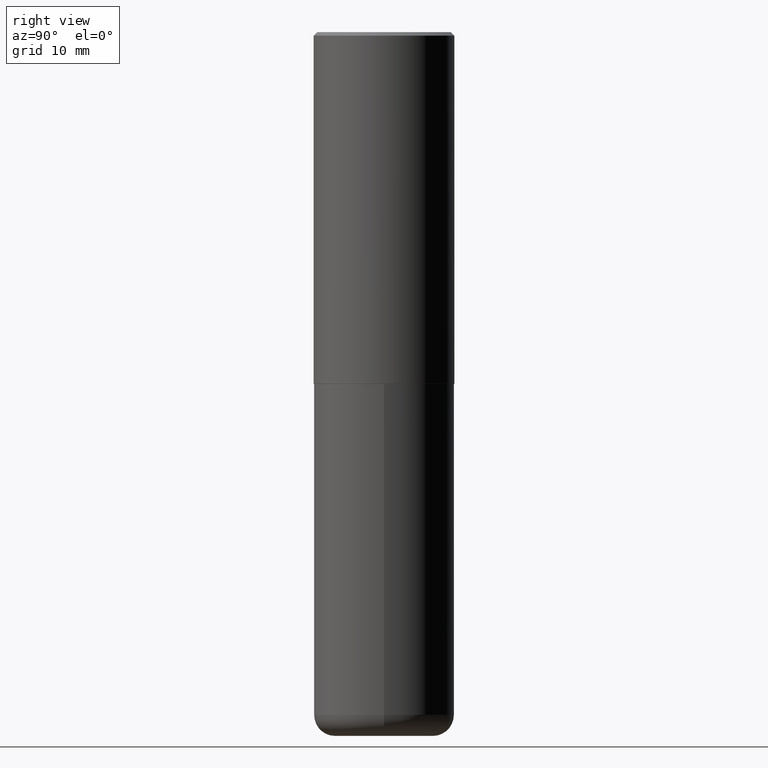
[diagram: clean part render]
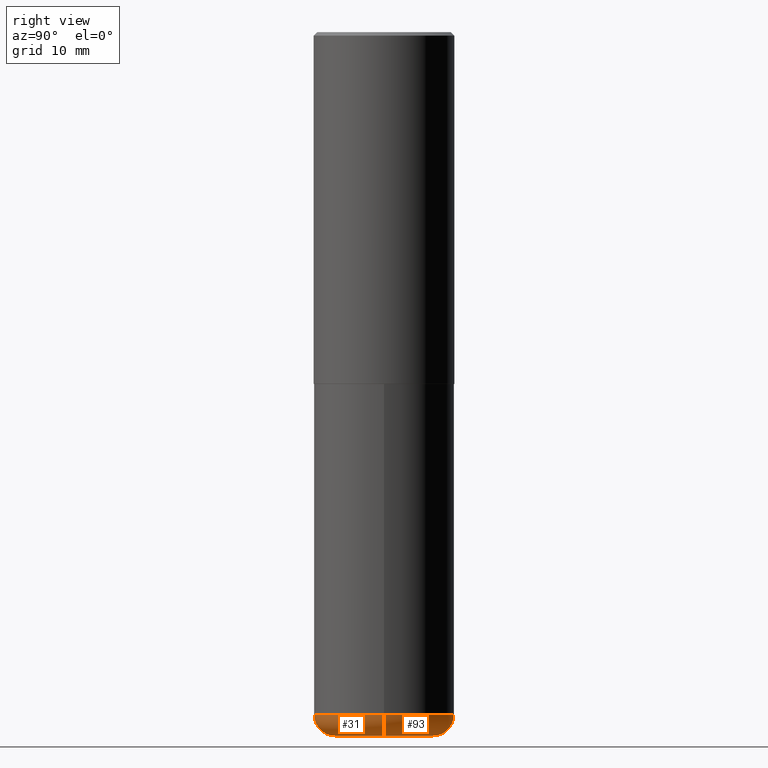
[diagram: same view with one multi-face feature highlighted, each face labeled with its STEP entity id]
A machine part, right view. The highlighted faces form ONE feature: a constant-radius fillet chain: 2 tangent blend faces with common blend radius 2.9997 mm. The faces share edges in the B-rep.
Their STEP definitions:
[1] entity #31 (Torus):
#5 = EDGE_CURVE ( 'NONE', #361, #190, #125, .T. ) ;
#20 = DIRECTION ( 'NONE',  ( 1.000000000000000000, -6.982962677686266711E-15, 4.883557194083112340E-29 ) ) ;
#29 = AXIS2_PLACEMENT_3D ( 'NONE', #271, #78, #305 ) ;
#31 = ADVANCED_FACE ( 'NONE', ( #86 ), #54, .T. ) ;
#52 = VERTEX_POINT ( 'NONE', #342 ) ;
#54 = TOROIDAL_SURFACE ( 'NONE', #121, 0.2756000000000000116, 0.1181000000000000522 ) ;
#60 = EDGE_CURVE ( 'NONE', #190, #219, #340, .T. ) ;
#78 = DIRECTION ( 'NONE',  ( -2.445468806185136597E-29, 3.491481338843145583E-15, 1.000000000000000000 ) ) ;
#79 = DIRECTION ( 'NONE',  ( 1.000000000000000000, -6.982962677686269077E-15, 0.000000000000000000 ) ) ;
#86 = FACE_OUTER_BOUND ( 'NONE', #110, .T. ) ;
#110 = EDGE_LOOP ( 'NONE', ( #357, #127, #333, #189 ) ) ;
#113 = CARTESIAN_POINT ( 'NONE',  ( -0.2756000000000000116, -1.137536230515325427E-14, -3.818900000000000183 ) ) ;
#121 = AXIS2_PLACEMENT_3D ( 'NONE', #275, #413, #20 ) ;
#125 = CIRCLE ( 'NONE', #173, 0.1181000000000000660 ) ;
#126 = CARTESIAN_POINT ( 'NONE',  ( -0.2756000000000000116, -1.116195879274560421E-14, -3.937000000000000277 ) ) ;
#127 = ORIENTED_EDGE ( 'NONE', *, *, #278, .T. ) ;
#134 = DIRECTION ( 'NONE',  ( -1.000000000000000000, 7.105427357601000281E-15, 0.000000000000000000 ) ) ;
#168 = CIRCLE ( 'NONE', #381, 0.1181000000000000660 ) ;
#173 = AXIS2_PLACEMENT_3D ( 'NONE', #113, #387, #134 ) ;
#189 = ORIENTED_EDGE ( 'NONE', *, *, #60, .F. ) ;
#190 = VERTEX_POINT ( 'NONE', #245 ) ;
#203 = EDGE_CURVE ( 'NONE', #52, #219, #168, .T. ) ;
#207 = CARTESIAN_POINT ( 'NONE',  ( 9.339000823940418668E-29, -1.333361808490808928E-14, -3.818900000000000183 ) ) ;
#219 = VERTEX_POINT ( 'NONE', #415 ) ;
#245 = CARTESIAN_POINT ( 'NONE',  ( -0.3937000000000001054, -1.053621133422057529E-14, -3.818900000000000183 ) ) ;
#271 = CARTESIAN_POINT ( 'NONE',  ( 9.627810689950883669E-29, -1.374596203102546341E-14, -3.937000000000000277 ) ) ;
#274 = AXIS2_PLACEMENT_3D ( 'NONE', #207, #302, #328 ) ;
#275 = CARTESIAN_POINT ( 'NONE',  ( 9.339000823940418668E-29, -1.333361808490808928E-14, -3.818900000000000183 ) ) ;
#278 = EDGE_CURVE ( 'NONE', #361, #52, #394, .T. ) ;
#302 = DIRECTION ( 'NONE',  ( -2.445468806185136597E-29, 3.491481338843145583E-15, 1.000000000000000000 ) ) ;
#305 = DIRECTION ( 'NONE',  ( 1.000000000000000000, -6.982962677686265922E-15, 0.000000000000000000 ) ) ;
#328 = DIRECTION ( 'NONE',  ( 1.000000000000000000, -6.982962677686266711E-15, 0.000000000000000000 ) ) ;
#333 = ORIENTED_EDGE ( 'NONE', *, *, #203, .T. ) ;
#340 = CIRCLE ( 'NONE', #274, 0.3937000000000001054 ) ;
#342 = CARTESIAN_POINT ( 'NONE',  ( 0.2756000000000000116, -1.567046654499579837E-14, -3.937000000000000277 ) ) ;
#357 = ORIENTED_EDGE ( 'NONE', *, *, #5, .F. ) ;
#361 = VERTEX_POINT ( 'NONE', #126 ) ;
#370 = CARTESIAN_POINT ( 'NONE',  ( 0.2756000000000000116, -1.525812259887842581E-14, -3.818900000000000183 ) ) ;
#381 = AXIS2_PLACEMENT_3D ( 'NONE', #370, #408, #79 ) ;
#387 = DIRECTION ( 'NONE',  ( 7.105427357601001859E-15, 1.000000000000000000, -3.491481338843145583E-15 ) ) ;
#394 = CIRCLE ( 'NONE', #29, 0.2756000000000000116 ) ;
#408 = DIRECTION ( 'NONE',  ( -6.982962677686266711E-15, -1.000000000000000000, 3.491481338843145583E-15 ) ) ;
#413 = DIRECTION ( 'NONE',  ( -2.445468806185136597E-29, 3.491481338843145583E-15, 1.000000000000000000 ) ) ;
#415 = CARTESIAN_POINT ( 'NONE',  ( 0.3937000000000001054, -1.608281049111317408E-14, -3.818900000000000183 ) ) ;
[2] entity #93 (Torus):
#5 = EDGE_CURVE ( 'NONE', #361, #190, #125, .T. ) ;
#23 = AXIS2_PLACEMENT_3D ( 'NONE', #161, #241, #298 ) ;
#37 = EDGE_CURVE ( 'NONE', #52, #361, #222, .T. ) ;
#38 = EDGE_LOOP ( 'NONE', ( #107, #170, #186, #416 ) ) ;
#52 = VERTEX_POINT ( 'NONE', #342 ) ;
#79 = DIRECTION ( 'NONE',  ( 1.000000000000000000, -6.982962677686269077E-15, 0.000000000000000000 ) ) ;
#93 = ADVANCED_FACE ( 'NONE', ( #373 ), #151, .T. ) ;
#100 = EDGE_CURVE ( 'NONE', #219, #190, #180, .T. ) ;
#104 = DIRECTION ( 'NONE',  ( -2.445468806185136597E-29, 3.491481338843145583E-15, 1.000000000000000000 ) ) ;
#107 = ORIENTED_EDGE ( 'NONE', *, *, #37, .T. ) ;
#113 = CARTESIAN_POINT ( 'NONE',  ( -0.2756000000000000116, -1.137536230515325427E-14, -3.818900000000000183 ) ) ;
#125 = CIRCLE ( 'NONE', #173, 0.1181000000000000660 ) ;
#126 = CARTESIAN_POINT ( 'NONE',  ( -0.2756000000000000116, -1.116195879274560421E-14, -3.937000000000000277 ) ) ;
#134 = DIRECTION ( 'NONE',  ( -1.000000000000000000, 7.105427357601000281E-15, 0.000000000000000000 ) ) ;
#151 = TOROIDAL_SURFACE ( 'NONE', #403, 0.2756000000000000116, 0.1181000000000000522 ) ;
#161 = CARTESIAN_POINT ( 'NONE',  ( 9.339000823940418668E-29, -1.333361808490808928E-14, -3.818900000000000183 ) ) ;
#168 = CIRCLE ( 'NONE', #381, 0.1181000000000000660 ) ;
#170 = ORIENTED_EDGE ( 'NONE', *, *, #5, .T. ) ;
#173 = AXIS2_PLACEMENT_3D ( 'NONE', #113, #387, #134 ) ;
#180 = CIRCLE ( 'NONE', #23, 0.3937000000000001054 ) ;
#186 = ORIENTED_EDGE ( 'NONE', *, *, #100, .F. ) ;
#190 = VERTEX_POINT ( 'NONE', #245 ) ;
#203 = EDGE_CURVE ( 'NONE', #52, #219, #168, .T. ) ;
#219 = VERTEX_POINT ( 'NONE', #415 ) ;
#222 = CIRCLE ( 'NONE', #281, 0.2756000000000000116 ) ;
#233 = CARTESIAN_POINT ( 'NONE',  ( 9.627810689950883669E-29, -1.374596203102546341E-14, -3.937000000000000277 ) ) ;
#241 = DIRECTION ( 'NONE',  ( -2.445468806185136597E-29, 3.491481338843145583E-15, 1.000000000000000000 ) ) ;
#245 = CARTESIAN_POINT ( 'NONE',  ( -0.3937000000000001054, -1.053621133422057529E-14, -3.818900000000000183 ) ) ;
#269 = CARTESIAN_POINT ( 'NONE',  ( 9.339000823940418668E-29, -1.333361808490808928E-14, -3.818900000000000183 ) ) ;
#281 = AXIS2_PLACEMENT_3D ( 'NONE', #233, #365, #393 ) ;
#298 = DIRECTION ( 'NONE',  ( 1.000000000000000000, -6.982962677686266711E-15, 0.000000000000000000 ) ) ;
#342 = CARTESIAN_POINT ( 'NONE',  ( 0.2756000000000000116, -1.567046654499579837E-14, -3.937000000000000277 ) ) ;
#361 = VERTEX_POINT ( 'NONE', #126 ) ;
#365 = DIRECTION ( 'NONE',  ( -2.445468806185136597E-29, 3.491481338843145583E-15, 1.000000000000000000 ) ) ;
#370 = CARTESIAN_POINT ( 'NONE',  ( 0.2756000000000000116, -1.525812259887842581E-14, -3.818900000000000183 ) ) ;
#373 = FACE_OUTER_BOUND ( 'NONE', #38, .T. ) ;
#381 = AXIS2_PLACEMENT_3D ( 'NONE', #370, #408, #79 ) ;
#387 = DIRECTION ( 'NONE',  ( 7.105427357601001859E-15, 1.000000000000000000, -3.491481338843145583E-15 ) ) ;
#393 = DIRECTION ( 'NONE',  ( 1.000000000000000000, -6.982962677686265922E-15, 0.000000000000000000 ) ) ;
#399 = DIRECTION ( 'NONE',  ( 1.000000000000000000, -6.982962677686266711E-15, 4.883557194083112340E-29 ) ) ;
#403 = AXIS2_PLACEMENT_3D ( 'NONE', #269, #104, #399 ) ;
#408 = DIRECTION ( 'NONE',  ( -6.982962677686266711E-15, -1.000000000000000000, 3.491481338843145583E-15 ) ) ;
#415 = CARTESIAN_POINT ( 'NONE',  ( 0.3937000000000001054, -1.608281049111317408E-14, -3.818900000000000183 ) ) ;
#416 = ORIENTED_EDGE ( 'NONE', *, *, #203, .F. ) ;